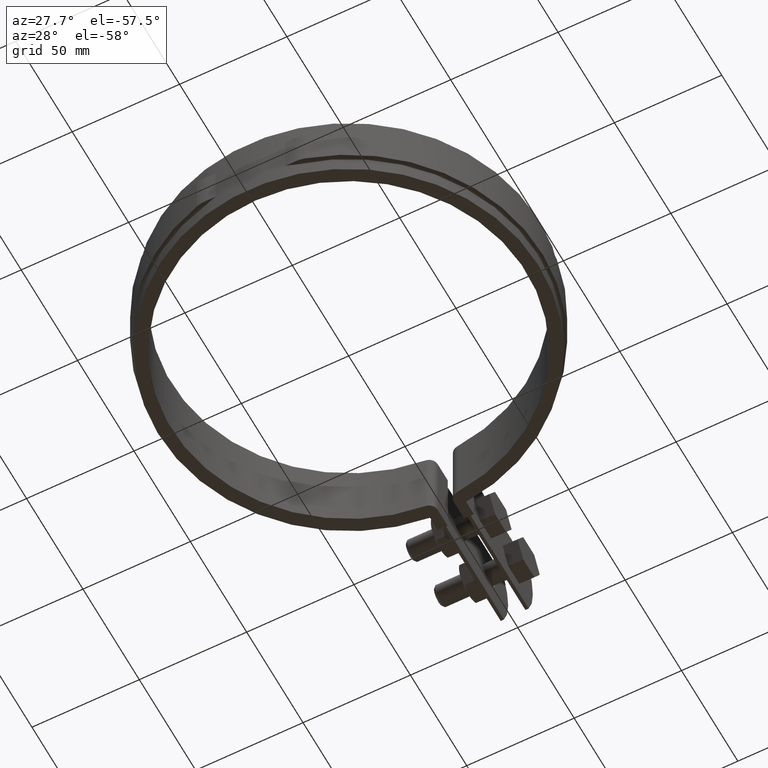
[diagram: clean part render]
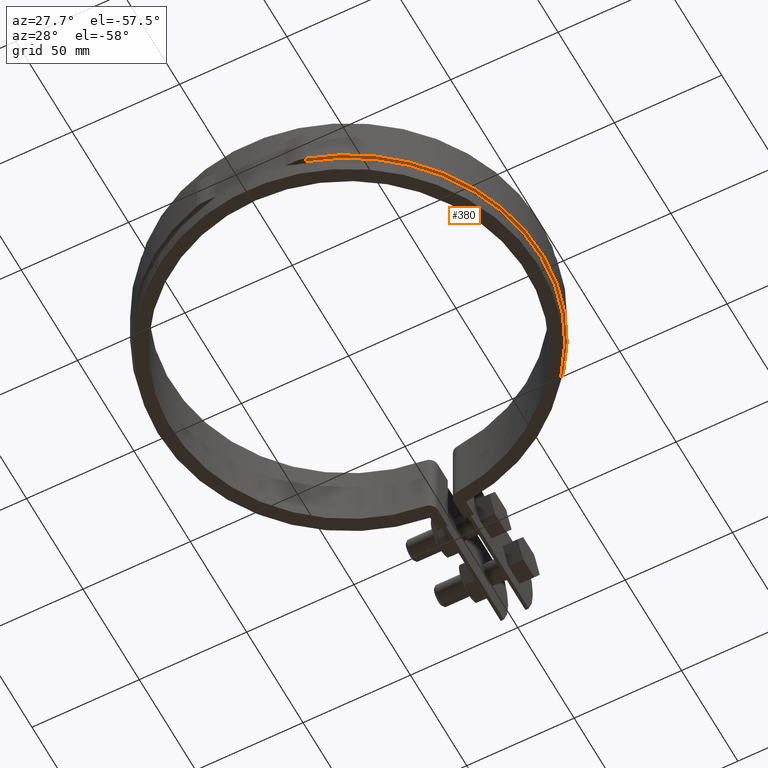
[diagram: same view with one face highlighted and labeled with its STEP entity id]
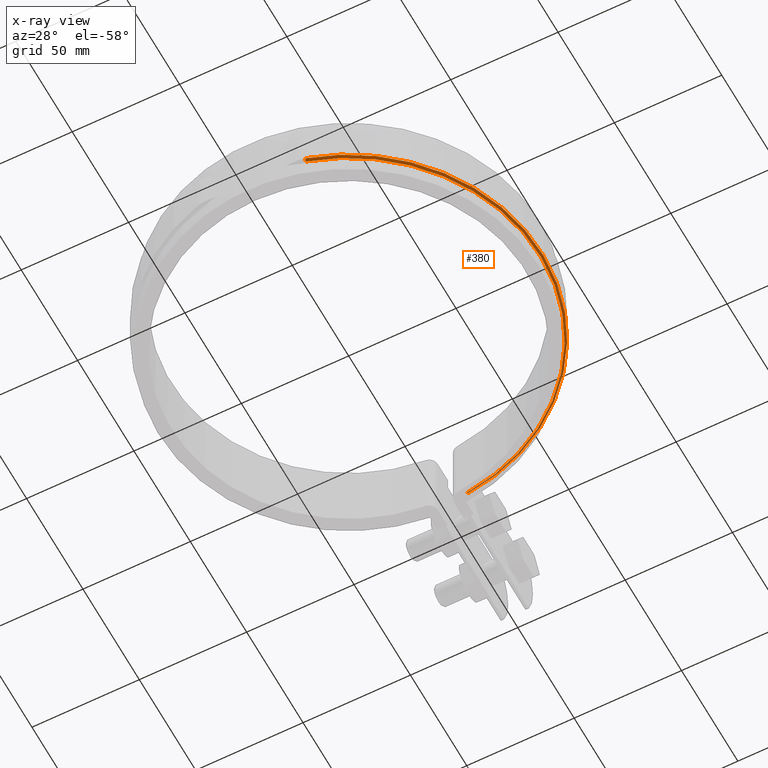
[diagram: x-ray of the same camera — body ghosted, the highlighted face saturated]
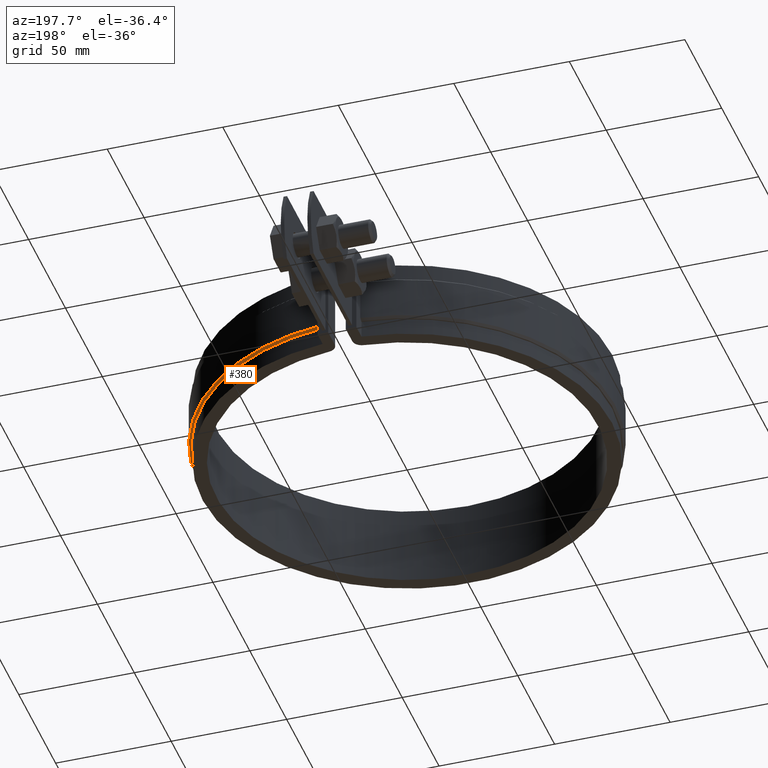
[diagram: same view with one face highlighted and labeled with its STEP entity id]
A machine part, auxiliary view. The second image highlights one B-rep face of the part: STEP entity #380.
The next image is the same camera in x-ray: the body ghosted, the highlighted face saturated — about 0% of this face is hidden behind the body in this view.
A second angle (auxiliary view) of the same face is appended — the face is thin or edge-on in the first view.
In plain terms, the highlighted conical surface has half-angle 45 deg.
Its self-contained STEP definition (entity closure, byte-faithful):
#380 = ADVANCED_FACE( '', ( #611 ), #612, .T. );
#611 = FACE_OUTER_BOUND( '', #1689, .T. );
#612 = CONICAL_SURFACE( '', #1690, 90.1000000000000, 0.785398163397441 );
#1689 = EDGE_LOOP( '', ( #3971, #3972, #3973, #3974 ) );
#1690 = AXIS2_PLACEMENT_3D( '', #3975, #3976, #3977 );
#3971 = ORIENTED_EDGE( '', *, *, #4727, .F. );
#3972 = ORIENTED_EDGE( '', *, *, #4853, .F. );
#3973 = ORIENTED_EDGE( '', *, *, #4854, .F. );
#3974 = ORIENTED_EDGE( '', *, *, #4855, .F. );
#3975 = CARTESIAN_POINT( '', ( -3.46944695195361E-015, 1.38777878078145E-014, -25.0000000000000 ) );
#3976 = DIRECTION( '', ( 0.000000000000000, 0.000000000000000, 1.00000000000000 ) );
#3977 = DIRECTION( '', ( 1.00000000000000, 0.000000000000000, 0.000000000000000 ) );
#4727 = EDGE_CURVE( '', #5219, #5221, #5222, .F. );
#4853 = EDGE_CURVE( '', #5244, #5219, #5435, .T. );
#4854 = EDGE_CURVE( '', #5436, #5244, #5437, .T. );
#4855 = EDGE_CURVE( '', #5221, #5436, #5438, .F. );
#5219 = VERTEX_POINT( '', #6949 );
#5221 = VERTEX_POINT( '', #6952 );
#5222 = B_SPLINE_CURVE_WITH_KNOTS( '', 3, ( #6953, #6954, #6955, #6956 ), .UNSPECIFIED., .F., .F., ( 4, 4 ), ( 707.223428894749, 707.224858261947 ), .UNSPECIFIED. );
#5244 = VERTEX_POINT( '', #6986 );
#5435 = CIRCLE( '', #8221, 90.1000000000000 );
#5436 = VERTEX_POINT( '', #8222 );
#5437 = LINE( '', #8223, #8224 );
#5438 = CIRCLE( '', #8225, 89.1000000000000 );
#6949 = CARTESIAN_POINT( '', ( 8.39999999999999, 89.7075805046597, -25.0000000000000 ) );
#6952 = CARTESIAN_POINT( '', ( 8.39999999999999, 88.7031566518351, -26.0000000000000 ) );
#6953 = CARTESIAN_POINT( '', ( 8.39999999999999, 88.7031566518215, -26.0000000000136 ) );
#6954 = CARTESIAN_POINT( '', ( 8.39999999999999, 89.0379728823533, -25.6666750107158 ) );
#6955 = CARTESIAN_POINT( '', ( 8.39999999999999, 89.3727807409911, -25.3333415843756 ) );
#6956 = CARTESIAN_POINT( '', ( 8.39999999999999, 89.7075805046234, -25.0000000000362 ) );
#6986 = CARTESIAN_POINT( '', ( 25.2115406837686, -86.5007989347536, -25.0000000000000 ) );
#8221 = AXIS2_PLACEMENT_3D( '', #8992, #8993, #8994 );
#8222 = CARTESIAN_POINT( '', ( 24.9317233620841, -85.5407456724367, -26.0000000000000 ) );
#8223 = CARTESIAN_POINT( '', ( 24.9317233620841, -85.5407456724367, -26.0000000000000 ) );
#8224 = VECTOR( '', #8995, 1000.00000000000 );
#8225 = AXIS2_PLACEMENT_3D( '', #8996, #8997, #8998 );
#8992 = CARTESIAN_POINT( '', ( -3.46944695195361E-015, 1.38777878078145E-014, -25.0000000000000 ) );
#8993 = DIRECTION( '', ( 0.000000000000000, 0.000000000000000, 1.00000000000000 ) );
#8994 = DIRECTION( '', ( 1.00000000000000, 0.000000000000000, 0.000000000000000 ) );
#8995 = DIRECTION( '', ( 0.197860725656529, -0.678860172084553, 0.707106781186549 ) );
#8996 = CARTESIAN_POINT( '', ( -3.46944695195361E-015, 1.38777878078145E-014, -26.0000000000000 ) );
#8997 = DIRECTION( '', ( 0.000000000000000, 0.000000000000000, 1.00000000000000 ) );
#8998 = DIRECTION( '', ( 1.00000000000000, 0.000000000000000, 0.000000000000000 ) );